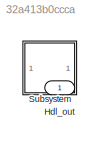
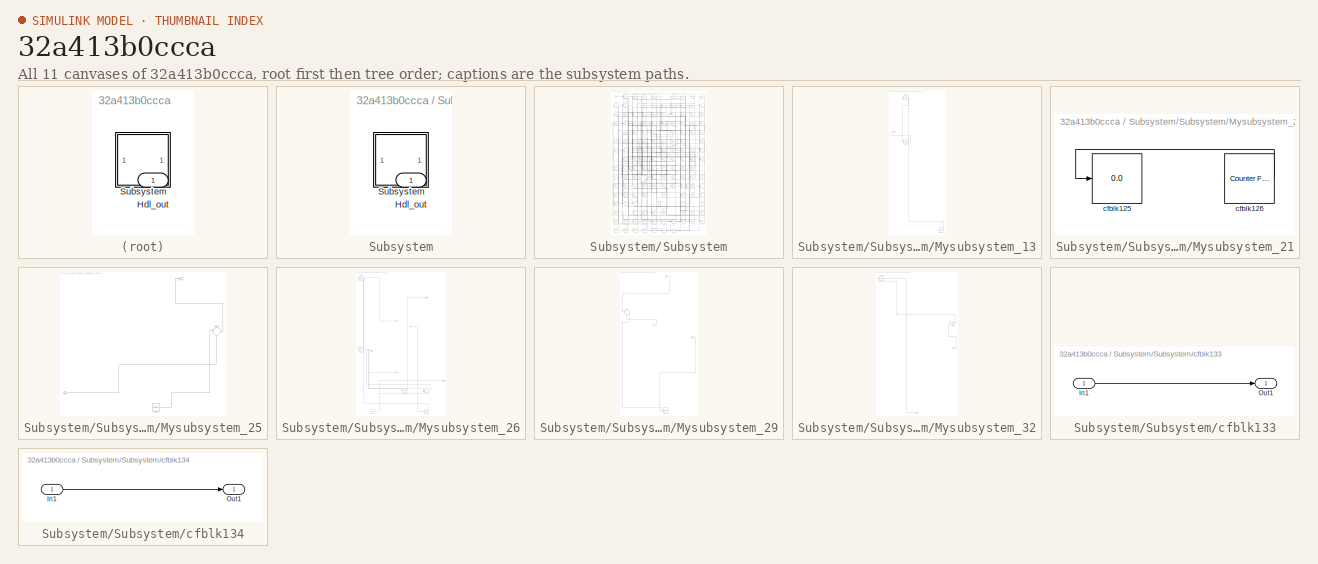
[diagram: thumbnail index - all 11 canvases of the model, root first then tree order]
MODEL slx_32a413b0ccca
KIND model
CONFIG AbsTol = auto
CONFIG EnableMultiTasking = off
CONFIG FixedStep = auto
CONFIG MaxStep = auto
CONFIG MinStep = auto
CONFIG RelTol = 1e-3
CONFIG SampleTimeConstraint = Unconstrained
CONFIG SolverName = VariableStepAuto
CONFIG StartTime = 0.0
CONFIG StopTime = 10.0
BLOCK [Outport] Hdl_out
  OutDataTypeStr = uint8
BLOCK [SubSystem] Subsystem
BLOCK [Outport] Subsystem/Hdl_out
  OutDataTypeStr = uint8
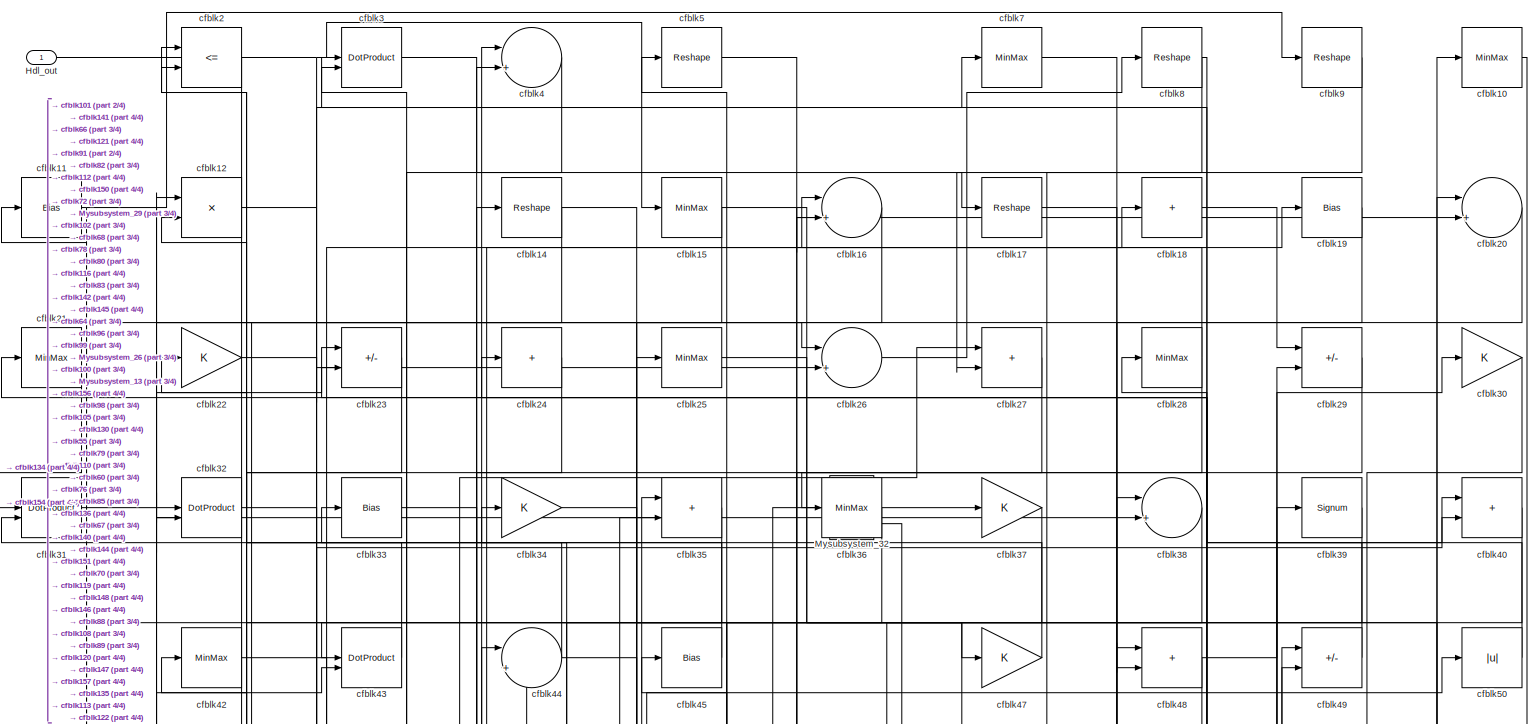
[diagram: Subsystem/Subsystem - part 1/4, full width, top band]
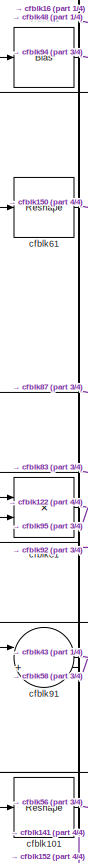
[diagram: Subsystem/Subsystem - part 2/4, middle left region]
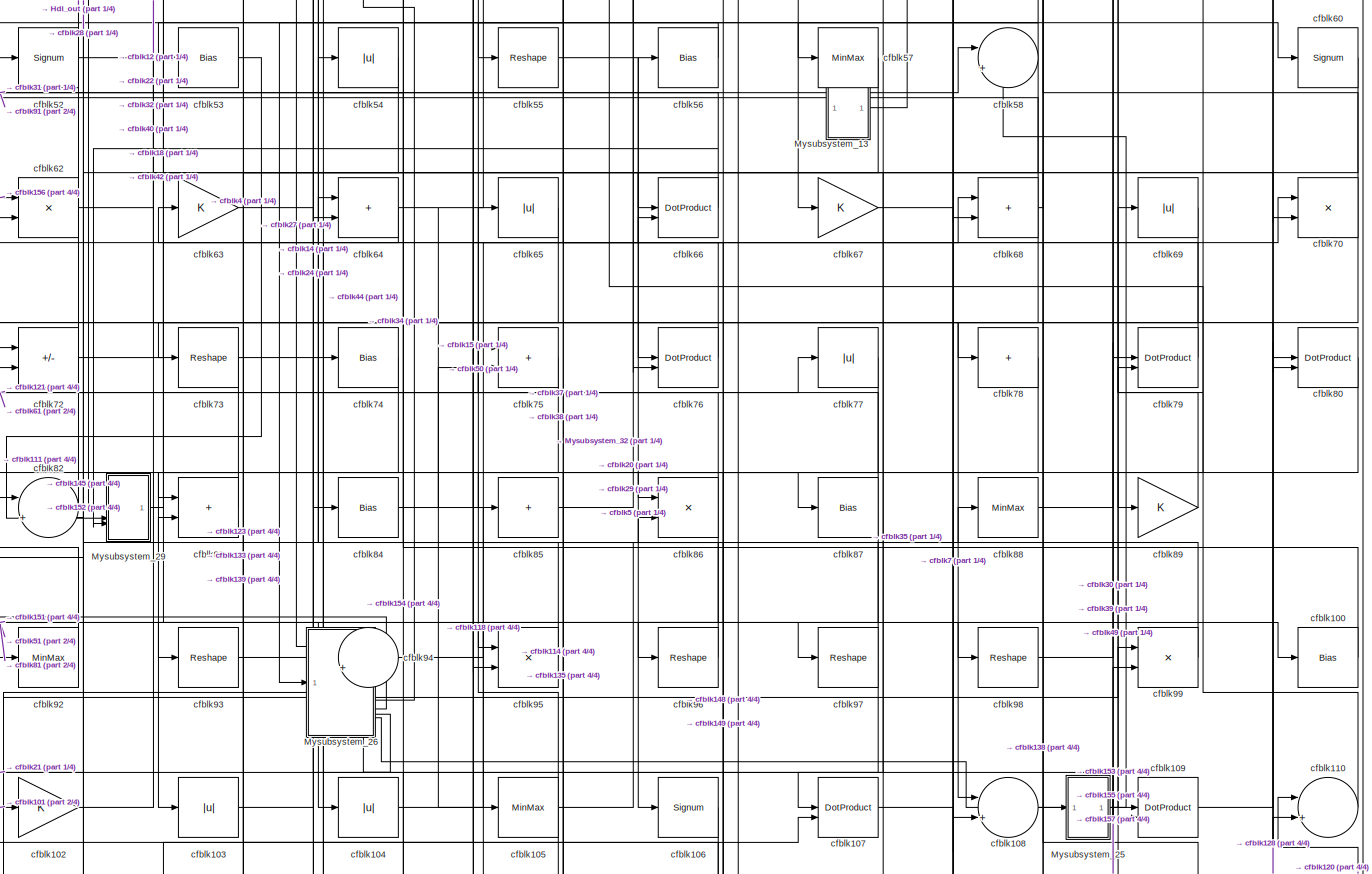
[diagram: Subsystem/Subsystem - part 3/4, full width, middle band]
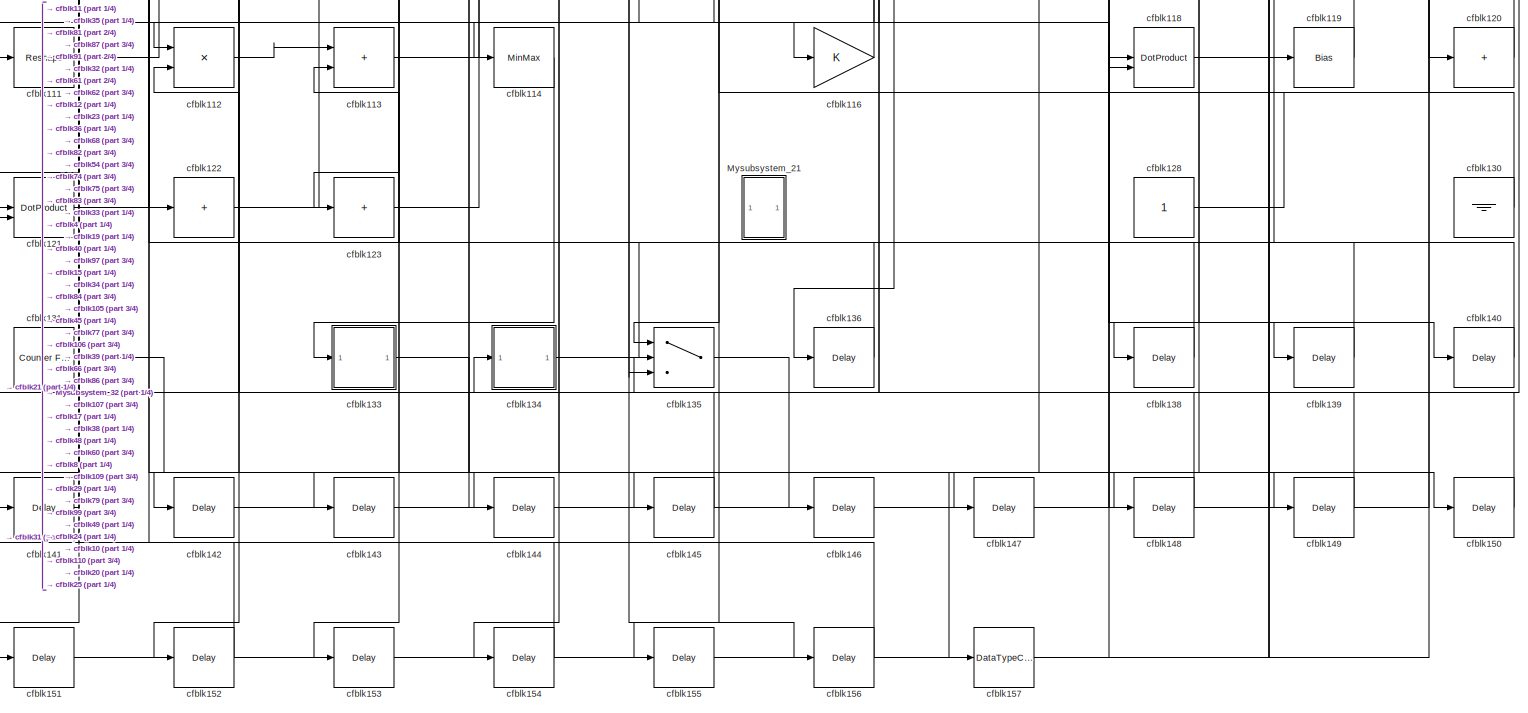
[diagram: Subsystem/Subsystem - part 4/4, full width, bottom band]
BLOCK [SubSystem] Subsystem/Subsystem
BLOCK [Outport] Subsystem/Subsystem/Hdl_out
  OutDataTypeStr = uint8
BLOCK [SubSystem] Subsystem/Subsystem/Mysubsystem_13
  RTWFcnName = Mysubsystem_13
  RTWFcnNameOpts = User specified
  RTWFileNameOpts = Use function name
  RTWSystemCode = Reusable function
  TreatAsAtomicUnit = on
BLOCK [Outport] Subsystem/Subsystem/Mysubsystem_13/Out1
BLOCK [Reference] Subsystem/Subsystem/Mysubsystem_13/cfblk129  REF=hdlsllib/Sources/Counter
Free-Running
  SourceBlock = hdlsllib/Sources/Counter\nFree-Running
  SourceType = Counter Free-Running
BLOCK [Bias] Subsystem/Subsystem/Mysubsystem_13/cfblk46
  Bias = 0.0
  SaturateOnIntegerOverflow = off
BLOCK [Reshape] Subsystem/Subsystem/Mysubsystem_13/cfblk6
BLOCK [SubSystem] Subsystem/Subsystem/Mysubsystem_21
  RTWFcnName = Mysubsystem_21
  RTWFcnNameOpts = User specified
  RTWFileNameOpts = Use function name
  RTWSystemCode = Reusable function
  TreatAsAtomicUnit = on
BLOCK [Display] Subsystem/Subsystem/Mysubsystem_21/cfblk125
  Decimation = 1
BLOCK [Reference] Subsystem/Subsystem/Mysubsystem_21/cfblk126  REF=hdlsllib/Sources/Counter
Free-Running
  SourceBlock = hdlsllib/Sources/Counter\nFree-Running
  SourceType = Counter Free-Running
BLOCK [SubSystem] Subsystem/Subsystem/Mysubsystem_25
  RTWFcnName = Mysubsystem_25
  RTWFcnNameOpts = User specified
  RTWFileNameOpts = Use function name
  RTWSystemCode = Reusable function
  TreatAsAtomicUnit = on
BLOCK [Inport] Subsystem/Subsystem/Mysubsystem_25/In1
BLOCK [Outport] Subsystem/Subsystem/Mysubsystem_25/Out1
BLOCK [Reference] Subsystem/Subsystem/Mysubsystem_25/cfblk127  REF=hdlsllib/Sources/Counter
Limited
  SourceBlock = hdlsllib/Sources/Counter\nLimited
  SourceType = Counter Limited
BLOCK [Sum] Subsystem/Subsystem/Mysubsystem_25/cfblk90
  Inputs = |++
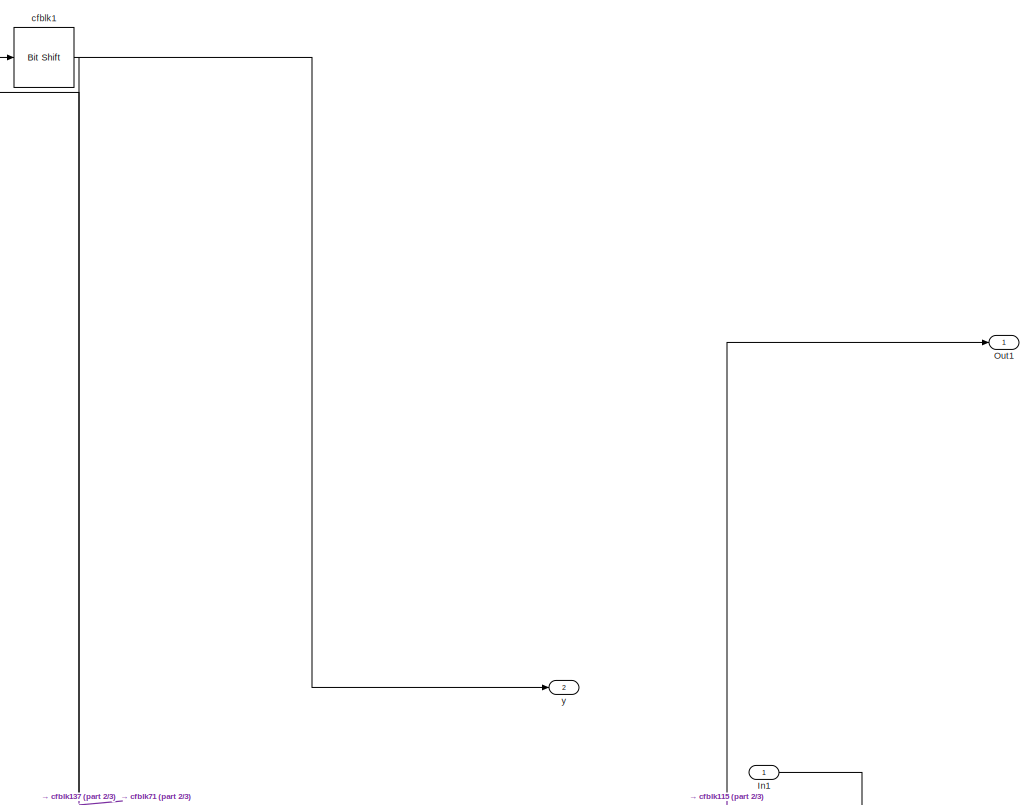
[diagram: Subsystem/Subsystem/Mysubsystem_26 - part 1/3, full width, top band]
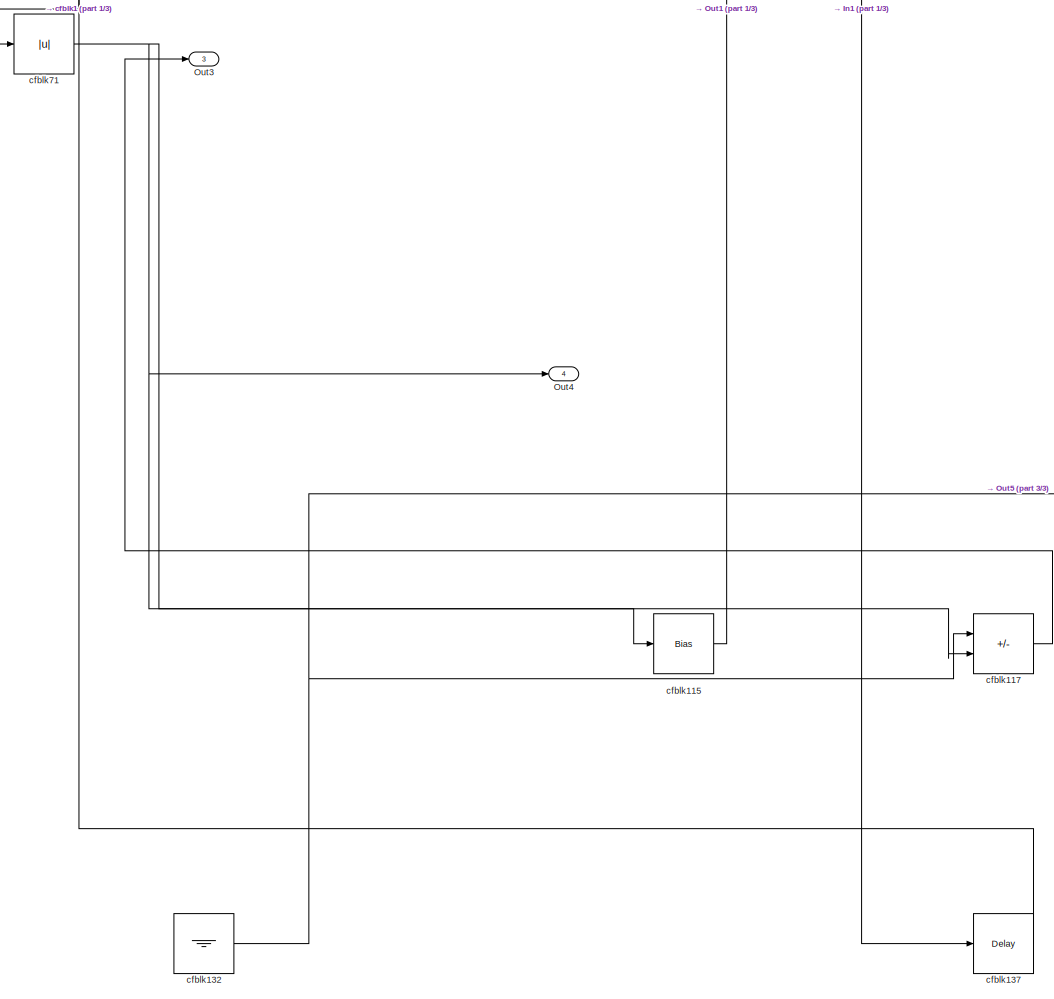
[diagram: Subsystem/Subsystem/Mysubsystem_26 - part 2/3, full width, bottom band]
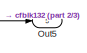
[diagram: Subsystem/Subsystem/Mysubsystem_26 - part 3/3, bottom right region]
BLOCK [SubSystem] Subsystem/Subsystem/Mysubsystem_26
  RTWFcnName = Mysubsystem_26
  RTWFcnNameOpts = User specified
  RTWFileNameOpts = Use function name
  RTWSystemCode = Reusable function
  TreatAsAtomicUnit = on
BLOCK [Inport] Subsystem/Subsystem/Mysubsystem_26/In1
BLOCK [Outport] Subsystem/Subsystem/Mysubsystem_26/Out1
BLOCK [Outport] Subsystem/Subsystem/Mysubsystem_26/Out3
  Port = 3
BLOCK [Outport] Subsystem/Subsystem/Mysubsystem_26/Out4
  Port = 4
BLOCK [Outport] Subsystem/Subsystem/Mysubsystem_26/Out5
  Port = 5
BLOCK [Reference] Subsystem/Subsystem/Mysubsystem_26/cfblk1  REF=hdlsllib/Logic and Bit
Operations/Bit Shift
  SourceBlock = hdlsllib/Logic and Bit\nOperations/Bit Shift
  SourceType = Bit Shift
BLOCK [Bias] Subsystem/Subsystem/Mysubsystem_26/cfblk115
  Bias = 0.0
  SaturateOnIntegerOverflow = off
BLOCK [Sum] Subsystem/Subsystem/Mysubsystem_26/cfblk117
  IconShape = rectangular
  Inputs = +-
BLOCK [Ground] Subsystem/Subsystem/Mysubsystem_26/cfblk132
BLOCK [Delay] Subsystem/Subsystem/Mysubsystem_26/cfblk137
  InputPortMap = u0
  SampleTime = 1
BLOCK [Abs] Subsystem/Subsystem/Mysubsystem_26/cfblk71
  SaturateOnIntegerOverflow = off
BLOCK [Outport] Subsystem/Subsystem/Mysubsystem_26/y
  Port = 2
BLOCK [SubSystem] Subsystem/Subsystem/Mysubsystem_29
  RTWFcnName = Mysubsystem_29
  RTWFcnNameOpts = User specified
  RTWFileNameOpts = Use function name
  RTWSystemCode = Reusable function
  TreatAsAtomicUnit = on
BLOCK [Inport] Subsystem/Subsystem/Mysubsystem_29/In1
BLOCK [Inport] Subsystem/Subsystem/Mysubsystem_29/In2
  Port = 2
BLOCK [Inport] Subsystem/Subsystem/Mysubsystem_29/In3
  Port = 3
BLOCK [Record] Subsystem/Subsystem/Mysubsystem_29/cfblk124
  CompatibilityTag = XY
  FileSettingsInternal = {"entries":[{"content":{"excelSettings":{"content":{},"type":"Streamout.ExcelSettings"}},"type":"Streamout.FileSettingStorage","uuid":""}],"packageUris":["http:\/\/schema.mathworks.com\/mf0\/streamout_blocks\/R2020a"],"version":"1.0"}
  Layout = [1 1]
  SignalsInternal = {"entries":[{"content":{},"type":"RecordBlkView.InputSignals","uuid":""}],"packageUris":["http:\/\/schema.mathworks.com\/mf0\/streamout_blocks\/R2020a"],"version":"1.0"}
  VisualizationBindings = {"xyplotplugin":{"info":[{"series":[],"subplotID":1}]}}
  st = -1
BLOCK [Sum] Subsystem/Subsystem/Mysubsystem_29/cfblk41
  Inputs = |++
BLOCK [SubSystem] Subsystem/Subsystem/Mysubsystem_32
  RTWFcnName = Mysubsystem_32
  RTWFcnNameOpts = User specified
  RTWFileNameOpts = Use function name
  RTWSystemCode = Reusable function
  TreatAsAtomicUnit = on
BLOCK [Inport] Subsystem/Subsystem/Mysubsystem_32/In1
BLOCK [Outport] Subsystem/Subsystem/Mysubsystem_32/Out1
BLOCK [Reshape] Subsystem/Subsystem/Mysubsystem_32/cfblk13
BLOCK [Gain] Subsystem/Subsystem/Mysubsystem_32/cfblk59
BLOCK [MinMax] Subsystem/Subsystem/cfblk10
  OutDataTypeStr = uint8
BLOCK [Bias] Subsystem/Subsystem/cfblk100
  Bias = 0.0
  SaturateOnIntegerOverflow = off
BLOCK [Reshape] Subsystem/Subsystem/cfblk101
BLOCK [Gain] Subsystem/Subsystem/cfblk102
  OutDataTypeStr = uint8
BLOCK [Abs] Subsystem/Subsystem/cfblk103
  OutDataTypeStr = uint8
  SaturateOnIntegerOverflow = off
BLOCK [Abs] Subsystem/Subsystem/cfblk104
  OutDataTypeStr = uint8
  SaturateOnIntegerOverflow = off
BLOCK [MinMax] Subsystem/Subsystem/cfblk105
  OutDataTypeStr = uint8
BLOCK [Signum] Subsystem/Subsystem/cfblk106
BLOCK [DotProduct] Subsystem/Subsystem/cfblk107
  OutDataTypeStr = uint8
BLOCK [Sum] Subsystem/Subsystem/cfblk108
  Inputs = |++
  OutDataTypeStr = uint8
BLOCK [DotProduct] Subsystem/Subsystem/cfblk109
  OutDataTypeStr = uint8
BLOCK [Bias] Subsystem/Subsystem/cfblk11
  Bias = 0.0
  SaturateOnIntegerOverflow = off
BLOCK [Sum] Subsystem/Subsystem/cfblk110
  Inputs = |++
  OutDataTypeStr = uint8
BLOCK [Reshape] Subsystem/Subsystem/cfblk111
BLOCK [Product] Subsystem/Subsystem/cfblk112
  Inputs = */
  OutDataTypeStr = uint8
  RndMeth = Zero
  SaturateOnIntegerOverflow = on
BLOCK [Sum] Subsystem/Subsystem/cfblk113
  IconShape = rectangular
  OutDataTypeStr = uint8
BLOCK [MinMax] Subsystem/Subsystem/cfblk114
  OutDataTypeStr = uint8
BLOCK [Gain] Subsystem/Subsystem/cfblk116
  OutDataTypeStr = uint8
BLOCK [DotProduct] Subsystem/Subsystem/cfblk118
  OutDataTypeStr = uint8
BLOCK [Bias] Subsystem/Subsystem/cfblk119
  Bias = 0.0
  SaturateOnIntegerOverflow = off
BLOCK [Product] Subsystem/Subsystem/cfblk12
  Inputs = */
  OutDataTypeStr = uint8
  RndMeth = Zero
  SaturateOnIntegerOverflow = on
BLOCK [Sum] Subsystem/Subsystem/cfblk120
  IconShape = rectangular
  Inputs = +
  OutDataTypeStr = uint8
BLOCK [DotProduct] Subsystem/Subsystem/cfblk121
  OutDataTypeStr = uint8
BLOCK [Sum] Subsystem/Subsystem/cfblk122
  IconShape = rectangular
  Inputs = +
  OutDataTypeStr = uint8
BLOCK [Sum] Subsystem/Subsystem/cfblk123
  IconShape = rectangular
  Inputs = +
  OutDataTypeStr = uint8
BLOCK [Constant] Subsystem/Subsystem/cfblk128
  OutDataTypeStr = uint8
  SampleTime = -1
BLOCK [Ground] Subsystem/Subsystem/cfblk130
BLOCK [Reference] Subsystem/Subsystem/cfblk131  REF=hdlsllib/Sources/Counter
Free-Running
  SourceBlock = hdlsllib/Sources/Counter\nFree-Running
  SourceType = Counter Free-Running
BLOCK [SubSystem] Subsystem/Subsystem/cfblk133
  LibrarySourceBlock = hdlsllib/Ports &\nSubsystems/Subsystem
BLOCK [Inport] Subsystem/Subsystem/cfblk133/In1
BLOCK [Outport] Subsystem/Subsystem/cfblk133/Out1
BLOCK [SubSystem] Subsystem/Subsystem/cfblk134
  LibrarySourceBlock = hdlsllib/Ports &\nSubsystems/Subsystem
BLOCK [Inport] Subsystem/Subsystem/cfblk134/In1
BLOCK [Outport] Subsystem/Subsystem/cfblk134/Out1
BLOCK [Switch] Subsystem/Subsystem/cfblk135
  InputSameDT = off
  OutDataTypeStr = uint8
  SaturateOnIntegerOverflow = off
BLOCK [Delay] Subsystem/Subsystem/cfblk136
  InputPortMap = u0
  SampleTime = 1
BLOCK [Delay] Subsystem/Subsystem/cfblk138
  InputPortMap = u0
  SampleTime = 1
BLOCK [Delay] Subsystem/Subsystem/cfblk139
  InputPortMap = u0
  SampleTime = 1
BLOCK [Reshape] Subsystem/Subsystem/cfblk14
BLOCK [Delay] Subsystem/Subsystem/cfblk140
  InputPortMap = u0
  SampleTime = 1
BLOCK [Delay] Subsystem/Subsystem/cfblk141
  InputPortMap = u0
  SampleTime = 1
BLOCK [Delay] Subsystem/Subsystem/cfblk142
  InputPortMap = u0
  SampleTime = 1
BLOCK [Delay] Subsystem/Subsystem/cfblk143
  InputPortMap = u0
  SampleTime = 1
BLOCK [Delay] Subsystem/Subsystem/cfblk144
  InputPortMap = u0
  SampleTime = 1
BLOCK [Delay] Subsystem/Subsystem/cfblk145
  InputPortMap = u0
  SampleTime = 1
BLOCK [Delay] Subsystem/Subsystem/cfblk146
  InputPortMap = u0
  SampleTime = 1
BLOCK [Delay] Subsystem/Subsystem/cfblk147
  InputPortMap = u0
  SampleTime = 1
BLOCK [Delay] Subsystem/Subsystem/cfblk148
  InputPortMap = u0
  SampleTime = 1
BLOCK [Delay] Subsystem/Subsystem/cfblk149
  InputPortMap = u0
  SampleTime = 1
BLOCK [MinMax] Subsystem/Subsystem/cfblk15
  OutDataTypeStr = uint8
BLOCK [Delay] Subsystem/Subsystem/cfblk150
  InputPortMap = u0
  SampleTime = 1
BLOCK [Delay] Subsystem/Subsystem/cfblk151
  InputPortMap = u0
  SampleTime = 1
BLOCK [Delay] Subsystem/Subsystem/cfblk152
  InputPortMap = u0
  SampleTime = 1
BLOCK [Delay] Subsystem/Subsystem/cfblk153
  InputPortMap = u0
  SampleTime = 1
BLOCK [Delay] Subsystem/Subsystem/cfblk154
  InputPortMap = u0
  SampleTime = 1
BLOCK [Delay] Subsystem/Subsystem/cfblk155
  InputPortMap = u0
  SampleTime = 1
BLOCK [Delay] Subsystem/Subsystem/cfblk156
  InputPortMap = u0
  SampleTime = 1
BLOCK [DataTypeConversion] Subsystem/Subsystem/cfblk157
  OutDataTypeStr = uint8
  RndMeth = Floor
  SaturateOnIntegerOverflow = off
BLOCK [Sum] Subsystem/Subsystem/cfblk16
  Inputs = |++
  OutDataTypeStr = uint8
BLOCK [Reshape] Subsystem/Subsystem/cfblk17
BLOCK [Sum] Subsystem/Subsystem/cfblk18
  IconShape = rectangular
  Inputs = +
  OutDataTypeStr = uint8
BLOCK [Bias] Subsystem/Subsystem/cfblk19
  Bias = 0.0
  SaturateOnIntegerOverflow = off
BLOCK [RelationalOperator] Subsystem/Subsystem/cfblk2
  InputSameDT = off
  Operator = <=
  OutDataTypeStr = boolean
BLOCK [Sum] Subsystem/Subsystem/cfblk20
  Inputs = |++
  OutDataTypeStr = uint8
BLOCK [MinMax] Subsystem/Subsystem/cfblk21
  OutDataTypeStr = uint8
BLOCK [Gain] Subsystem/Subsystem/cfblk22
  OutDataTypeStr = uint8
BLOCK [Sum] Subsystem/Subsystem/cfblk23
  IconShape = rectangular
  Inputs = +-
  OutDataTypeStr = uint8
BLOCK [Sum] Subsystem/Subsystem/cfblk24
  IconShape = rectangular
  Inputs = +
  OutDataTypeStr = uint8
BLOCK [MinMax] Subsystem/Subsystem/cfblk25
  OutDataTypeStr = uint8
BLOCK [Sum] Subsystem/Subsystem/cfblk26
  Inputs = |++
  OutDataTypeStr = uint8
BLOCK [Sum] Subsystem/Subsystem/cfblk27
  IconShape = rectangular
  OutDataTypeStr = uint8
BLOCK [MinMax] Subsystem/Subsystem/cfblk28
  OutDataTypeStr = uint8
BLOCK [Sum] Subsystem/Subsystem/cfblk29
  IconShape = rectangular
  Inputs = +-
  OutDataTypeStr = uint8
BLOCK [DotProduct] Subsystem/Subsystem/cfblk3
  OutDataTypeStr = uint8
BLOCK [Gain] Subsystem/Subsystem/cfblk30
  OutDataTypeStr = uint8
BLOCK [DotProduct] Subsystem/Subsystem/cfblk31
  OutDataTypeStr = uint8
BLOCK [DotProduct] Subsystem/Subsystem/cfblk32
  OutDataTypeStr = uint8
BLOCK [Bias] Subsystem/Subsystem/cfblk33
  Bias = 0.0
  SaturateOnIntegerOverflow = off
BLOCK [Gain] Subsystem/Subsystem/cfblk34
  OutDataTypeStr = uint8
BLOCK [Sum] Subsystem/Subsystem/cfblk35
  IconShape = rectangular
  OutDataTypeStr = uint8
BLOCK [MinMax] Subsystem/Subsystem/cfblk36
  OutDataTypeStr = uint8
BLOCK [Gain] Subsystem/Subsystem/cfblk37
  OutDataTypeStr = uint8
BLOCK [Sum] Subsystem/Subsystem/cfblk38
  Inputs = |++
  OutDataTypeStr = uint8
BLOCK [Signum] Subsystem/Subsystem/cfblk39
BLOCK [Sum] Subsystem/Subsystem/cfblk4
  Inputs = |++
  OutDataTypeStr = uint8
BLOCK [Sum] Subsystem/Subsystem/cfblk40
  IconShape = rectangular
  OutDataTypeStr = uint8
BLOCK [MinMax] Subsystem/Subsystem/cfblk42
  OutDataTypeStr = uint8
BLOCK [DotProduct] Subsystem/Subsystem/cfblk43
  OutDataTypeStr = uint8
BLOCK [Sum] Subsystem/Subsystem/cfblk44
  Inputs = |++
  OutDataTypeStr = uint8
BLOCK [Bias] Subsystem/Subsystem/cfblk45
  Bias = 0.0
  SaturateOnIntegerOverflow = off
BLOCK [Gain] Subsystem/Subsystem/cfblk47
  OutDataTypeStr = uint8
BLOCK [Sum] Subsystem/Subsystem/cfblk48
  IconShape = rectangular
  OutDataTypeStr = uint8
BLOCK [Sum] Subsystem/Subsystem/cfblk49
  IconShape = rectangular
  Inputs = +-
  OutDataTypeStr = uint8
BLOCK [Reshape] Subsystem/Subsystem/cfblk5
BLOCK [Abs] Subsystem/Subsystem/cfblk50
  OutDataTypeStr = uint8
  SaturateOnIntegerOverflow = off
BLOCK [Bias] Subsystem/Subsystem/cfblk51
  Bias = 0.0
  SaturateOnIntegerOverflow = off
BLOCK [Signum] Subsystem/Subsystem/cfblk52
BLOCK [Bias] Subsystem/Subsystem/cfblk53
  Bias = 0.0
  SaturateOnIntegerOverflow = off
BLOCK [Abs] Subsystem/Subsystem/cfblk54
  OutDataTypeStr = uint8
  SaturateOnIntegerOverflow = off
BLOCK [Reshape] Subsystem/Subsystem/cfblk55
BLOCK [Bias] Subsystem/Subsystem/cfblk56
  Bias = 0.0
  SaturateOnIntegerOverflow = off
BLOCK [MinMax] Subsystem/Subsystem/cfblk57
  OutDataTypeStr = uint8
BLOCK [Sum] Subsystem/Subsystem/cfblk58
  Inputs = |++
  OutDataTypeStr = uint8
BLOCK [Signum] Subsystem/Subsystem/cfblk60
BLOCK [Reshape] Subsystem/Subsystem/cfblk61
BLOCK [Product] Subsystem/Subsystem/cfblk62
  Inputs = */
  OutDataTypeStr = uint8
  RndMeth = Zero
  SaturateOnIntegerOverflow = on
BLOCK [Gain] Subsystem/Subsystem/cfblk63
  OutDataTypeStr = uint8
BLOCK [Sum] Subsystem/Subsystem/cfblk64
  IconShape = rectangular
  OutDataTypeStr = uint8
BLOCK [Abs] Subsystem/Subsystem/cfblk65
  OutDataTypeStr = uint8
  SaturateOnIntegerOverflow = off
BLOCK [DotProduct] Subsystem/Subsystem/cfblk66
  OutDataTypeStr = uint8
BLOCK [Gain] Subsystem/Subsystem/cfblk67
  OutDataTypeStr = uint8
BLOCK [Sum] Subsystem/Subsystem/cfblk68
  IconShape = rectangular
  OutDataTypeStr = uint8
BLOCK [Abs] Subsystem/Subsystem/cfblk69
  OutDataTypeStr = uint8
  SaturateOnIntegerOverflow = off
BLOCK [MinMax] Subsystem/Subsystem/cfblk7
  OutDataTypeStr = uint8
BLOCK [Product] Subsystem/Subsystem/cfblk70
  Inputs = */
  OutDataTypeStr = uint8
  RndMeth = Zero
  SaturateOnIntegerOverflow = on
BLOCK [Sum] Subsystem/Subsystem/cfblk72
  IconShape = rectangular
  Inputs = +-
  OutDataTypeStr = uint8
BLOCK [Reshape] Subsystem/Subsystem/cfblk73
BLOCK [Bias] Subsystem/Subsystem/cfblk74
  Bias = 0.0
  SaturateOnIntegerOverflow = off
BLOCK [Sum] Subsystem/Subsystem/cfblk75
  IconShape = rectangular
  OutDataTypeStr = uint8
BLOCK [DotProduct] Subsystem/Subsystem/cfblk76
  OutDataTypeStr = uint8
BLOCK [Abs] Subsystem/Subsystem/cfblk77
  OutDataTypeStr = uint8
  SaturateOnIntegerOverflow = off
BLOCK [Sum] Subsystem/Subsystem/cfblk78
  IconShape = rectangular
  Inputs = +
  OutDataTypeStr = uint8
BLOCK [DotProduct] Subsystem/Subsystem/cfblk79
  OutDataTypeStr = uint8
BLOCK [Reshape] Subsystem/Subsystem/cfblk8
BLOCK [DotProduct] Subsystem/Subsystem/cfblk80
  OutDataTypeStr = uint8
BLOCK [Product] Subsystem/Subsystem/cfblk81
  Inputs = */
  OutDataTypeStr = uint8
  RndMeth = Zero
  SaturateOnIntegerOverflow = on
BLOCK [Sum] Subsystem/Subsystem/cfblk82
  Inputs = |++
  OutDataTypeStr = uint8
BLOCK [Sum] Subsystem/Subsystem/cfblk83
  IconShape = rectangular
  OutDataTypeStr = uint8
BLOCK [Bias] Subsystem/Subsystem/cfblk84
  Bias = 0.0
  SaturateOnIntegerOverflow = off
BLOCK [Sum] Subsystem/Subsystem/cfblk85
  IconShape = rectangular
  Inputs = +
  OutDataTypeStr = uint8
BLOCK [Product] Subsystem/Subsystem/cfblk86
  Inputs = */
  OutDataTypeStr = uint8
  RndMeth = Zero
  SaturateOnIntegerOverflow = on
BLOCK [Bias] Subsystem/Subsystem/cfblk87
  Bias = 0.0
  SaturateOnIntegerOverflow = off
BLOCK [MinMax] Subsystem/Subsystem/cfblk88
  OutDataTypeStr = uint8
BLOCK [Gain] Subsystem/Subsystem/cfblk89
  OutDataTypeStr = uint8
BLOCK [Reshape] Subsystem/Subsystem/cfblk9
BLOCK [Sum] Subsystem/Subsystem/cfblk91
  Inputs = |++
  OutDataTypeStr = uint8
BLOCK [MinMax] Subsystem/Subsystem/cfblk92
  OutDataTypeStr = uint8
BLOCK [Reshape] Subsystem/Subsystem/cfblk93
BLOCK [Sum] Subsystem/Subsystem/cfblk94
  Inputs = |++
  OutDataTypeStr = uint8
BLOCK [Product] Subsystem/Subsystem/cfblk95
  Inputs = */
  OutDataTypeStr = uint8
  RndMeth = Zero
  SaturateOnIntegerOverflow = on
BLOCK [Reshape] Subsystem/Subsystem/cfblk96
BLOCK [Reshape] Subsystem/Subsystem/cfblk97
BLOCK [Reshape] Subsystem/Subsystem/cfblk98
BLOCK [Product] Subsystem/Subsystem/cfblk99
  Inputs = */
  OutDataTypeStr = uint8
  RndMeth = Zero
  SaturateOnIntegerOverflow = on
LINE Subsystem/Subsystem/Mysubsystem_13/cfblk129:1 -> Subsystem/Subsystem/Mysubsystem_13/cfblk6:1
LINE Subsystem/Subsystem/Mysubsystem_13/cfblk46:1 -> Subsystem/Subsystem/Mysubsystem_13/Out1:1
LINE Subsystem/Subsystem/Mysubsystem_13/cfblk6:1 -> Subsystem/Subsystem/Mysubsystem_13/cfblk46:1
LINE Subsystem/Subsystem/Mysubsystem_13:1 -> Subsystem/Subsystem/cfblk35:2
LINE Subsystem/Subsystem/Mysubsystem_21/cfblk126:1 -> Subsystem/Subsystem/Mysubsystem_21/cfblk125:1
LINE Subsystem/Subsystem/Mysubsystem_25/In1:1 -> Subsystem/Subsystem/Mysubsystem_25/cfblk90:2
LINE Subsystem/Subsystem/Mysubsystem_25/cfblk127:1 -> Subsystem/Subsystem/Mysubsystem_25/cfblk90:1
LINE Subsystem/Subsystem/Mysubsystem_25/cfblk90:1 -> Subsystem/Subsystem/Mysubsystem_25/Out1:1
LINE Subsystem/Subsystem/Mysubsystem_25:1 -> Subsystem/Subsystem/cfblk58:2
LINE Subsystem/Subsystem/Mysubsystem_26/In1:1 -> Subsystem/Subsystem/Mysubsystem_26/cfblk137:1
LINE Subsystem/Subsystem/Mysubsystem_26/cfblk115:1 -> Subsystem/Subsystem/Mysubsystem_26/Out1:1
LINE Subsystem/Subsystem/Mysubsystem_26/cfblk117:1 -> Subsystem/Subsystem/Mysubsystem_26/Out3:1
NET Subsystem/Subsystem/Mysubsystem_26/cfblk132:1 -> Subsystem/Subsystem/Mysubsystem_26/Out5:1, Subsystem/Subsystem/Mysubsystem_26/cfblk117:1
LINE Subsystem/Subsystem/Mysubsystem_26/cfblk137:1 -> Subsystem/Subsystem/Mysubsystem_26/cfblk1:1
NET Subsystem/Subsystem/Mysubsystem_26/cfblk1:1 -> Subsystem/Subsystem/Mysubsystem_26/cfblk71:1, Subsystem/Subsystem/Mysubsystem_26/y:1
NET Subsystem/Subsystem/Mysubsystem_26/cfblk71:1 -> Subsystem/Subsystem/Mysubsystem_26/Out4:1, Subsystem/Subsystem/Mysubsystem_26/cfblk115:1, Subsystem/Subsystem/Mysubsystem_26/cfblk117:2
LINE Subsystem/Subsystem/Mysubsystem_26:1 -> Subsystem/Subsystem/cfblk27:1
LINE Subsystem/Subsystem/Mysubsystem_26:2 -> Subsystem/Subsystem/cfblk44:2
LINE Subsystem/Subsystem/Mysubsystem_26:3 -> Subsystem/Subsystem/cfblk72:2
LINE Subsystem/Subsystem/Mysubsystem_26:4 -> Subsystem/Subsystem/cfblk94:2
LINE Subsystem/Subsystem/Mysubsystem_26:5 -> Subsystem/Subsystem/Mysubsystem_25:1
LINE Subsystem/Subsystem/Mysubsystem_29/In1:1 -> Subsystem/Subsystem/Mysubsystem_29/cfblk41:1
LINE Subsystem/Subsystem/Mysubsystem_29/In2:1 -> Subsystem/Subsystem/Mysubsystem_29/cfblk41:2
LINE Subsystem/Subsystem/Mysubsystem_29/In3:1 -> Subsystem/Subsystem/Mysubsystem_29/cfblk124:2
LINE Subsystem/Subsystem/Mysubsystem_29/cfblk41:1 -> Subsystem/Subsystem/Mysubsystem_29/cfblk124:1
LINE Subsystem/Subsystem/Mysubsystem_32/In1:1 -> Subsystem/Subsystem/Mysubsystem_32/cfblk59:1
LINE Subsystem/Subsystem/Mysubsystem_32/cfblk13:1 -> Subsystem/Subsystem/Mysubsystem_32/Out1:1
LINE Subsystem/Subsystem/Mysubsystem_32/cfblk59:1 -> Subsystem/Subsystem/Mysubsystem_32/cfblk13:1
LINE Subsystem/Subsystem/Mysubsystem_32:1 -> Subsystem/Subsystem/cfblk136:1
LINE Subsystem/Subsystem/cfblk100:1 -> Subsystem/Subsystem/cfblk34:1
LINE Subsystem/Subsystem/cfblk101:1 -> Subsystem/Subsystem/cfblk56:1
LINE Subsystem/Subsystem/cfblk102:1 -> Subsystem/Subsystem/cfblk40:1
LINE Subsystem/Subsystem/cfblk103:1 -> Subsystem/Subsystem/cfblk74:1
LINE Subsystem/Subsystem/cfblk104:1 -> Subsystem/Subsystem/cfblk70:1
NET Subsystem/Subsystem/cfblk105:1 -> Subsystem/Subsystem/cfblk114:1, Subsystem/Subsystem/cfblk35:1, Subsystem/Subsystem/cfblk88:1
LINE Subsystem/Subsystem/cfblk106:1 -> Subsystem/Subsystem/cfblk111:1
LINE Subsystem/Subsystem/cfblk107:1 -> Subsystem/Subsystem/cfblk139:1
LINE Subsystem/Subsystem/cfblk108:1 -> Subsystem/Subsystem/cfblk49:2
LINE Subsystem/Subsystem/cfblk109:1 -> Subsystem/Subsystem/cfblk80:1
LINE Subsystem/Subsystem/cfblk10:1 -> Subsystem/Subsystem/cfblk135:2
NET Subsystem/Subsystem/cfblk110:1 -> Subsystem/Subsystem/Mysubsystem_32:1, Subsystem/Subsystem/cfblk79:2
NET Subsystem/Subsystem/cfblk111:1 -> Subsystem/Subsystem/cfblk107:2, Subsystem/Subsystem/cfblk99:1
LINE Subsystem/Subsystem/cfblk112:1 -> Subsystem/Subsystem/cfblk113:1
LINE Subsystem/Subsystem/cfblk113:1 -> Subsystem/Subsystem/cfblk19:1
LINE Subsystem/Subsystem/cfblk114:1 -> Subsystem/Subsystem/cfblk143:1
LINE Subsystem/Subsystem/cfblk116:1 -> Subsystem/Subsystem/cfblk33:1
LINE Subsystem/Subsystem/cfblk118:1 -> Subsystem/Subsystem/cfblk119:1
LINE Subsystem/Subsystem/cfblk119:1 -> Subsystem/Subsystem/cfblk24:1
NET Subsystem/Subsystem/cfblk11:1 -> Subsystem/Subsystem/cfblk121:1, Subsystem/Subsystem/cfblk26:1, Subsystem/Subsystem/cfblk9:1
LINE Subsystem/Subsystem/cfblk120:1 -> Subsystem/Subsystem/cfblk110:1
NET Subsystem/Subsystem/cfblk121:1 -> Subsystem/Subsystem/cfblk12:1, Subsystem/Subsystem/cfblk75:1
LINE Subsystem/Subsystem/cfblk122:1 -> Subsystem/Subsystem/cfblk25:1
LINE Subsystem/Subsystem/cfblk123:1 -> Subsystem/Subsystem/cfblk77:1
LINE Subsystem/Subsystem/cfblk128:1 -> Subsystem/Subsystem/cfblk110:2
NET Subsystem/Subsystem/cfblk12:1 -> Subsystem/Subsystem/cfblk68:2, Subsystem/Subsystem/cfblk7:1
LINE Subsystem/Subsystem/cfblk130:1 -> Subsystem/Subsystem/cfblk45:1
LINE Subsystem/Subsystem/cfblk131:1 -> Subsystem/Subsystem/cfblk157:1
LINE Subsystem/Subsystem/cfblk133/In1:1 -> Subsystem/Subsystem/cfblk133/Out1:1
LINE Subsystem/Subsystem/cfblk133:1 -> Subsystem/Subsystem/cfblk149:1
LINE Subsystem/Subsystem/cfblk134/In1:1 -> Subsystem/Subsystem/cfblk134/Out1:1
LINE Subsystem/Subsystem/cfblk134:1 -> Subsystem/Subsystem/cfblk49:1
LINE Subsystem/Subsystem/cfblk135:1 -> Subsystem/Subsystem/cfblk146:1
LINE Subsystem/Subsystem/cfblk136:1 -> Subsystem/Subsystem/cfblk32:1
LINE Subsystem/Subsystem/cfblk138:1 -> Subsystem/Subsystem/cfblk112:2
LINE Subsystem/Subsystem/cfblk139:1 -> Subsystem/Subsystem/cfblk83:2
LINE Subsystem/Subsystem/cfblk140:1 -> Subsystem/Subsystem/cfblk113:2
LINE Subsystem/Subsystem/cfblk141:1 -> Subsystem/Subsystem/cfblk81:2
LINE Subsystem/Subsystem/cfblk142:1 -> Subsystem/Subsystem/cfblk4:2
LINE Subsystem/Subsystem/cfblk143:1 -> Subsystem/Subsystem/cfblk118:1
LINE Subsystem/Subsystem/cfblk144:1 -> Subsystem/Subsystem/cfblk48:1
LINE Subsystem/Subsystem/cfblk145:1 -> Subsystem/Subsystem/cfblk82:1
LINE Subsystem/Subsystem/cfblk146:1 -> Subsystem/Subsystem/cfblk29:2
LINE Subsystem/Subsystem/cfblk147:1 -> Subsystem/Subsystem/cfblk20:1
LINE Subsystem/Subsystem/cfblk148:1 -> Subsystem/Subsystem/cfblk66:2
LINE Subsystem/Subsystem/cfblk149:1 -> Subsystem/Subsystem/cfblk86:2
NET Subsystem/Subsystem/cfblk14:1 -> Subsystem/Subsystem/Mysubsystem_29:1, Subsystem/Subsystem/cfblk47:1
LINE Subsystem/Subsystem/cfblk150:1 -> Subsystem/Subsystem/cfblk12:2
LINE Subsystem/Subsystem/cfblk151:1 -> Subsystem/Subsystem/cfblk38:1
LINE Subsystem/Subsystem/cfblk152:1 -> Subsystem/Subsystem/cfblk91:2
LINE Subsystem/Subsystem/cfblk153:1 -> Subsystem/Subsystem/cfblk99:2
LINE Subsystem/Subsystem/cfblk154:1 -> Subsystem/Subsystem/cfblk31:1
LINE Subsystem/Subsystem/cfblk155:1 -> Subsystem/Subsystem/cfblk79:1
LINE Subsystem/Subsystem/cfblk156:1 -> Subsystem/Subsystem/cfblk62:1
NET Subsystem/Subsystem/cfblk157:1 -> Subsystem/Subsystem/cfblk109:1, Subsystem/Subsystem/cfblk10:1
NET Subsystem/Subsystem/cfblk15:1 -> Subsystem/Subsystem/cfblk135:3, Subsystem/Subsystem/cfblk16:2, Subsystem/Subsystem/cfblk67:1
LINE Subsystem/Subsystem/cfblk16:1 -> Subsystem/Subsystem/cfblk101:1
LINE Subsystem/Subsystem/cfblk17:1 -> Subsystem/Subsystem/cfblk140:1
LINE Subsystem/Subsystem/cfblk18:1 -> Subsystem/Subsystem/cfblk29:1
LINE Subsystem/Subsystem/cfblk19:1 -> Subsystem/Subsystem/cfblk32:2
LINE Subsystem/Subsystem/cfblk20:1 -> Subsystem/Subsystem/cfblk48:2
LINE Subsystem/Subsystem/cfblk21:1 -> Subsystem/Subsystem/cfblk134:1
NET Subsystem/Subsystem/cfblk22:1 -> Subsystem/Subsystem/cfblk2:2, Subsystem/Subsystem/cfblk80:2
LINE Subsystem/Subsystem/cfblk23:1 -> Subsystem/Subsystem/cfblk142:1
LINE Subsystem/Subsystem/cfblk24:1 -> Subsystem/Subsystem/cfblk64:2
LINE Subsystem/Subsystem/cfblk25:1 -> Subsystem/Subsystem/cfblk120:1
LINE Subsystem/Subsystem/cfblk26:1 -> Subsystem/Subsystem/cfblk8:1
LINE Subsystem/Subsystem/cfblk27:1 -> Subsystem/Subsystem/cfblk36:1
NET Subsystem/Subsystem/cfblk28:1 -> Subsystem/Subsystem/cfblk16:1, Subsystem/Subsystem/cfblk72:1
LINE Subsystem/Subsystem/cfblk29:1 -> Subsystem/Subsystem/cfblk76:2
NET Subsystem/Subsystem/cfblk2:1 -> Subsystem/Subsystem/cfblk15:1, Subsystem/Subsystem/cfblk26:2
LINE Subsystem/Subsystem/cfblk30:1 -> Subsystem/Subsystem/cfblk89:1
NET Subsystem/Subsystem/cfblk31:1 -> Subsystem/Subsystem/cfblk23:1, Subsystem/Subsystem/cfblk38:2
LINE Subsystem/Subsystem/cfblk32:1 -> Subsystem/Subsystem/cfblk78:1
LINE Subsystem/Subsystem/cfblk33:1 -> Subsystem/Subsystem/cfblk145:1
LINE Subsystem/Subsystem/cfblk34:1 -> Subsystem/Subsystem/cfblk156:1
LINE Subsystem/Subsystem/cfblk35:1 -> Subsystem/Subsystem/cfblk141:1
NET Subsystem/Subsystem/cfblk36:1 -> Subsystem/Subsystem/cfblk112:1, Subsystem/Subsystem/cfblk37:1
LINE Subsystem/Subsystem/cfblk37:1 -> Subsystem/Subsystem/cfblk55:1
LINE Subsystem/Subsystem/cfblk38:1 -> Subsystem/Subsystem/cfblk85:1
LINE Subsystem/Subsystem/cfblk39:1 -> Subsystem/Subsystem/cfblk116:1
LINE Subsystem/Subsystem/cfblk3:1 -> Subsystem/Subsystem/cfblk17:1
LINE Subsystem/Subsystem/cfblk40:1 -> Subsystem/Subsystem/cfblk144:1
LINE Subsystem/Subsystem/cfblk42:1 -> Subsystem/Subsystem/cfblk100:1
LINE Subsystem/Subsystem/cfblk43:1 -> Subsystem/Subsystem/cfblk2:1
NET Subsystem/Subsystem/cfblk44:1 -> Subsystem/Subsystem/cfblk22:1, Subsystem/Subsystem/cfblk98:1
NET Subsystem/Subsystem/cfblk45:1 -> Subsystem/Subsystem/cfblk11:1, Subsystem/Subsystem/cfblk43:1
LINE Subsystem/Subsystem/cfblk47:1 -> Subsystem/Subsystem/cfblk3:1
NET Subsystem/Subsystem/cfblk48:1 -> Subsystem/Subsystem/cfblk40:2, Subsystem/Subsystem/cfblk91:1
LINE Subsystem/Subsystem/cfblk49:1 -> Subsystem/Subsystem/cfblk23:2
LINE Subsystem/Subsystem/cfblk4:1 -> Subsystem/Subsystem/cfblk83:1
LINE Subsystem/Subsystem/cfblk50:1 -> Subsystem/Subsystem/cfblk3:2
LINE Subsystem/Subsystem/cfblk51:1 -> Subsystem/Subsystem/cfblk94:1
LINE Subsystem/Subsystem/cfblk52:1 -> Subsystem/Subsystem/cfblk87:1
LINE Subsystem/Subsystem/cfblk53:1 -> Subsystem/Subsystem/Mysubsystem_29:2
LINE Subsystem/Subsystem/cfblk54:1 -> Subsystem/Subsystem/cfblk133:1
LINE Subsystem/Subsystem/cfblk55:1 -> Subsystem/Subsystem/cfblk76:1
LINE Subsystem/Subsystem/cfblk56:1 -> Subsystem/Subsystem/cfblk53:1
LINE Subsystem/Subsystem/cfblk57:1 -> Subsystem/Subsystem/cfblk106:1
NET Subsystem/Subsystem/cfblk58:1 -> Subsystem/Subsystem/cfblk57:1, Subsystem/Subsystem/cfblk93:1
NET Subsystem/Subsystem/cfblk5:1 -> Subsystem/Subsystem/Mysubsystem_26:1, Subsystem/Subsystem/cfblk60:1
NET Subsystem/Subsystem/cfblk60:1 -> Subsystem/Subsystem/cfblk107:1, Subsystem/Subsystem/cfblk138:1, Subsystem/Subsystem/cfblk82:2
LINE Subsystem/Subsystem/cfblk61:1 -> Subsystem/Subsystem/cfblk150:1
LINE Subsystem/Subsystem/cfblk62:1 -> Subsystem/Subsystem/cfblk66:1
LINE Subsystem/Subsystem/cfblk63:1 -> Subsystem/Subsystem/cfblk84:1
NET Subsystem/Subsystem/cfblk64:1 -> Subsystem/Subsystem/cfblk105:1, Subsystem/Subsystem/cfblk50:1, Subsystem/Subsystem/cfblk62:2
LINE Subsystem/Subsystem/cfblk65:1 -> Subsystem/Subsystem/cfblk92:1
NET Subsystem/Subsystem/cfblk66:1 -> Subsystem/Subsystem/Mysubsystem_29:3, Subsystem/Subsystem/cfblk31:2
LINE Subsystem/Subsystem/cfblk67:1 -> Subsystem/Subsystem/cfblk108:2
NET Subsystem/Subsystem/cfblk68:1 -> Subsystem/Subsystem/cfblk152:1, Subsystem/Subsystem/cfblk28:1, Subsystem/Subsystem/cfblk52:1
LINE Subsystem/Subsystem/cfblk69:1 -> Subsystem/Subsystem/cfblk108:1
NET Subsystem/Subsystem/cfblk70:1 -> Subsystem/Subsystem/cfblk102:1, Subsystem/Subsystem/cfblk21:1
LINE Subsystem/Subsystem/cfblk72:1 -> Subsystem/Subsystem/cfblk14:1
NET Subsystem/Subsystem/cfblk73:1 -> Subsystem/Subsystem/cfblk103:1, Subsystem/Subsystem/cfblk109:2
LINE Subsystem/Subsystem/cfblk74:1 -> Subsystem/Subsystem/cfblk123:1
LINE Subsystem/Subsystem/cfblk75:1 -> Subsystem/Subsystem/cfblk153:1
LINE Subsystem/Subsystem/cfblk76:1 -> Subsystem/Subsystem/cfblk63:1
LINE Subsystem/Subsystem/cfblk77:1 -> Subsystem/Subsystem/cfblk135:1
NET Subsystem/Subsystem/cfblk78:1 -> Subsystem/Subsystem/cfblk95:1, Subsystem/Subsystem/cfblk96:1
NET Subsystem/Subsystem/cfblk79:1 -> Subsystem/Subsystem/cfblk5:1, Subsystem/Subsystem/cfblk73:1
LINE Subsystem/Subsystem/cfblk7:1 -> Subsystem/Subsystem/cfblk70:2
LINE Subsystem/Subsystem/cfblk80:1 -> Subsystem/Subsystem/cfblk86:1
NET Subsystem/Subsystem/cfblk81:1 -> Subsystem/Subsystem/cfblk122:1, Subsystem/Subsystem/cfblk95:2
NET Subsystem/Subsystem/cfblk82:1 -> Subsystem/Subsystem/Hdl_out:1, Subsystem/Subsystem/cfblk18:1
LINE Subsystem/Subsystem/cfblk83:1 -> Subsystem/Subsystem/cfblk81:1
NET Subsystem/Subsystem/cfblk84:1 -> Subsystem/Subsystem/cfblk118:2, Subsystem/Subsystem/cfblk68:1, Subsystem/Subsystem/cfblk75:2
LINE Subsystem/Subsystem/cfblk85:1 -> Subsystem/Subsystem/cfblk20:2
NET Subsystem/Subsystem/cfblk86:1 -> Subsystem/Subsystem/cfblk155:1, Subsystem/Subsystem/cfblk65:1
NET Subsystem/Subsystem/cfblk87:1 -> Subsystem/Subsystem/cfblk151:1, Subsystem/Subsystem/cfblk61:1
LINE Subsystem/Subsystem/cfblk88:1 -> Subsystem/Subsystem/cfblk30:1
LINE Subsystem/Subsystem/cfblk89:1 -> Subsystem/Subsystem/cfblk69:1
NET Subsystem/Subsystem/cfblk8:1 -> Subsystem/Subsystem/cfblk147:1, Subsystem/Subsystem/cfblk148:1
NET Subsystem/Subsystem/cfblk91:1 -> Subsystem/Subsystem/cfblk43:2, Subsystem/Subsystem/cfblk58:1
LINE Subsystem/Subsystem/cfblk92:1 -> Subsystem/Subsystem/cfblk51:1
LINE Subsystem/Subsystem/cfblk93:1 -> Subsystem/Subsystem/cfblk104:1
LINE Subsystem/Subsystem/cfblk94:1 -> Subsystem/Subsystem/cfblk97:1
LINE Subsystem/Subsystem/cfblk95:1 -> Subsystem/Subsystem/cfblk64:1
LINE Subsystem/Subsystem/cfblk96:1 -> Subsystem/Subsystem/cfblk4:1
NET Subsystem/Subsystem/cfblk97:1 -> Subsystem/Subsystem/cfblk121:2, Subsystem/Subsystem/cfblk154:1, Subsystem/Subsystem/cfblk54:1
LINE Subsystem/Subsystem/cfblk98:1 -> Subsystem/Subsystem/cfblk39:1
NET Subsystem/Subsystem/cfblk99:1 -> Subsystem/Subsystem/cfblk42:1, Subsystem/Subsystem/cfblk44:1
LINE Subsystem/Subsystem/cfblk9:1 -> Subsystem/Subsystem/cfblk27:2
LINE Subsystem:1 -> Hdl_out:1
note: NET lines group one-source signal fan-out (src -> all destinations, sorted); 1:1 wires keep LINE
